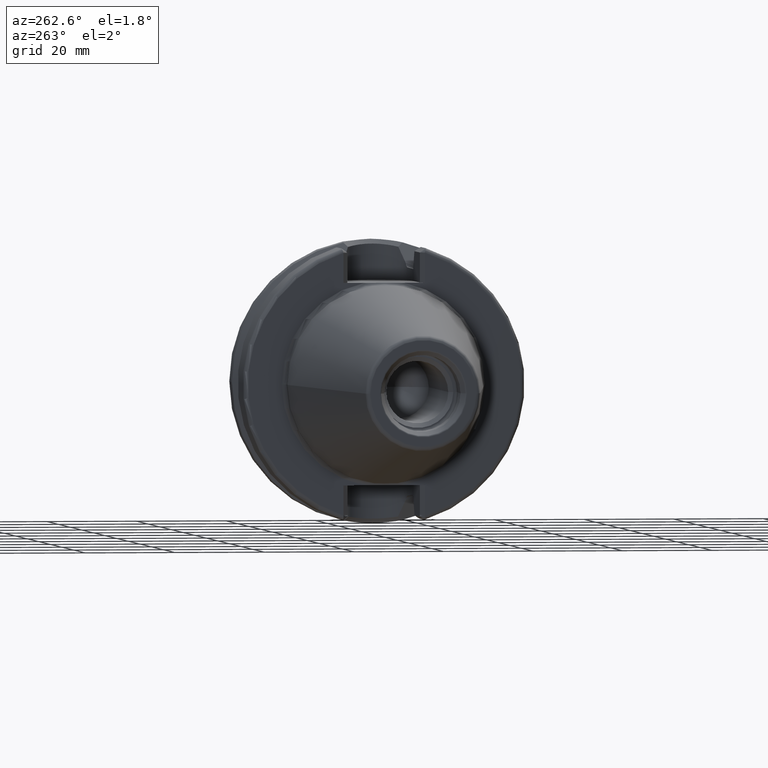
[diagram: clean part render]
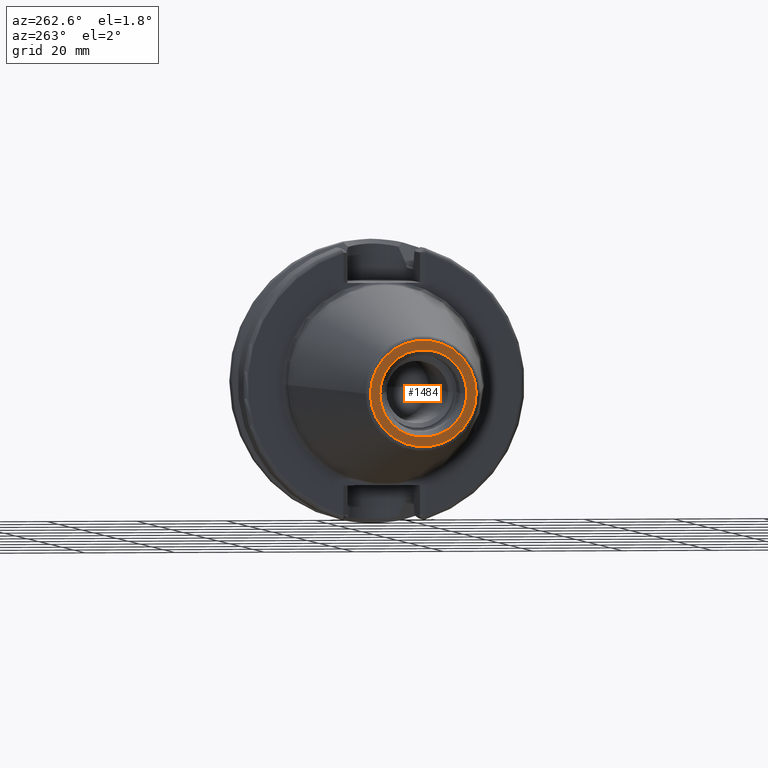
[diagram: same view with one face highlighted and labeled with its STEP entity id]
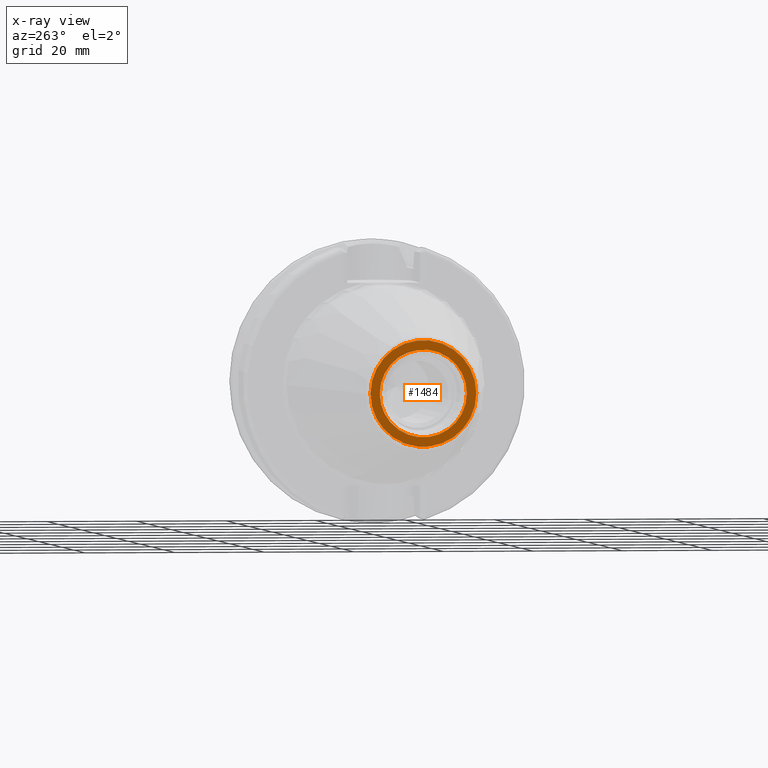
[diagram: x-ray of the same camera — body ghosted, the highlighted face saturated]
A machine part, auxiliary view. The second image highlights one B-rep face of the part: STEP entity #1484.
The next image is the same camera in x-ray: the body ghosted, the highlighted face saturated — about 0% of this face is hidden behind the body in this view.
In plain terms, the highlighted planar face has unit normal (1, 0, 0).
Its self-contained STEP definition (entity closure, byte-faithful):
#2=CARTESIAN_POINT('',(-6.54E1,0.E0,0.E0));
#3=DIRECTION('',(-1.E0,0.E0,0.E0));
#4=DIRECTION('',(0.E0,1.E0,0.E0));
#5=AXIS2_PLACEMENT_3D('',#2,#3,#4);
#7=CARTESIAN_POINT('',(-6.54E1,0.E0,0.E0));
#8=DIRECTION('',(1.E0,0.E0,0.E0));
#9=DIRECTION('',(0.E0,1.E0,0.E0));
#10=AXIS2_PLACEMENT_3D('',#7,#8,#9);
#12=CARTESIAN_POINT('',(-6.54E1,0.E0,0.E0));
#13=DIRECTION('',(1.E0,0.E0,0.E0));
#14=DIRECTION('',(0.E0,1.E0,0.E0));
#15=AXIS2_PLACEMENT_3D('',#12,#13,#14);
#17=CARTESIAN_POINT('',(-6.54E1,0.E0,0.E0));
#18=DIRECTION('',(1.E0,0.E0,0.E0));
#19=DIRECTION('',(0.E0,-1.E0,0.E0));
#20=AXIS2_PLACEMENT_3D('',#17,#18,#19);
#1209=CARTESIAN_POINT('',(-6.54E1,1.182197113897E1,0.E0));
#1211=VERTEX_POINT('',#1209);
#1213=CARTESIAN_POINT('',(-6.54E1,-1.182197113897E1,0.E0));
#1215=VERTEX_POINT('',#1213);
#1338=CARTESIAN_POINT('',(-6.54E1,9.730940107676E0,0.E0));
#1339=CARTESIAN_POINT('',(-6.54E1,-9.730940107676E0,0.E0));
#1340=VERTEX_POINT('',#1338);
#1341=VERTEX_POINT('',#1339);
#1467=CARTESIAN_POINT('',(-6.54E1,0.E0,0.E0));
#1468=DIRECTION('',(1.E0,0.E0,0.E0));
#1469=DIRECTION('',(0.E0,-1.E0,0.E0));
#1470=AXIS2_PLACEMENT_3D('',#1467,#1468,#1469);
#1471=PLANE('',#1470);
#1473=ORIENTED_EDGE('',*,*,#1472,.F.);
#1475=ORIENTED_EDGE('',*,*,#1474,.T.);
#1476=EDGE_LOOP('',(#1473,#1475));
#1477=FACE_OUTER_BOUND('',#1476,.F.);
#1479=ORIENTED_EDGE('',*,*,#1478,.F.);
#1481=ORIENTED_EDGE('',*,*,#1480,.F.);
#1482=EDGE_LOOP('',(#1479,#1481));
#1483=FACE_BOUND('',#1482,.F.);
#1484=ADVANCED_FACE('',(#1477,#1483),#1471,.F.);
#6=CIRCLE('',#5,1.182197113897E1);
#11=CIRCLE('',#10,1.182197113897E1);
#16=CIRCLE('',#15,9.730940107676E0);
#21=CIRCLE('',#20,9.730940107676E0);
#1472=EDGE_CURVE('',#1211,#1215,#6,.T.);
#1474=EDGE_CURVE('',#1211,#1215,#11,.T.);
#1478=EDGE_CURVE('',#1340,#1341,#16,.T.);
#1480=EDGE_CURVE('',#1341,#1340,#21,.T.);